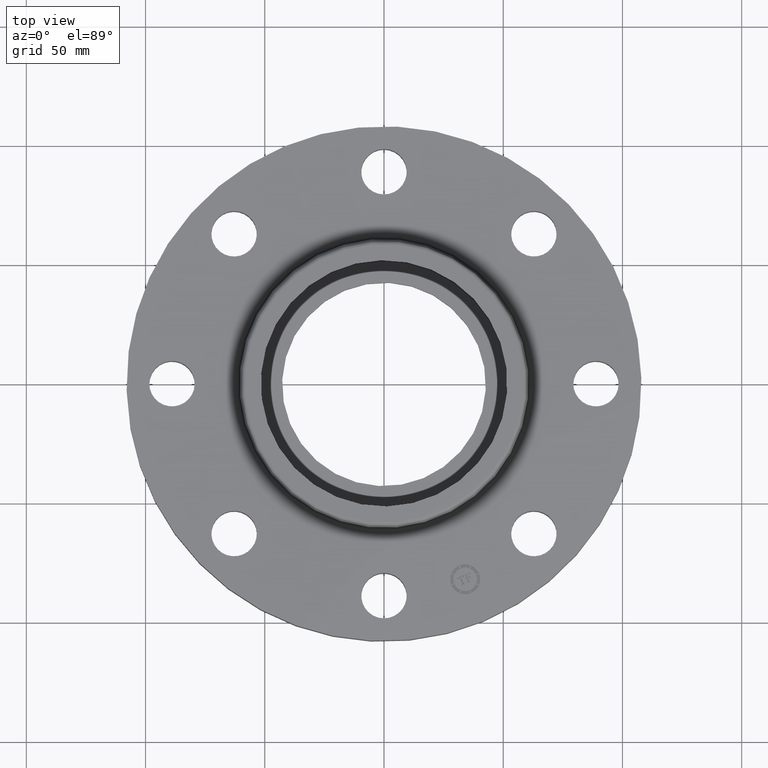
[diagram: clean part render]
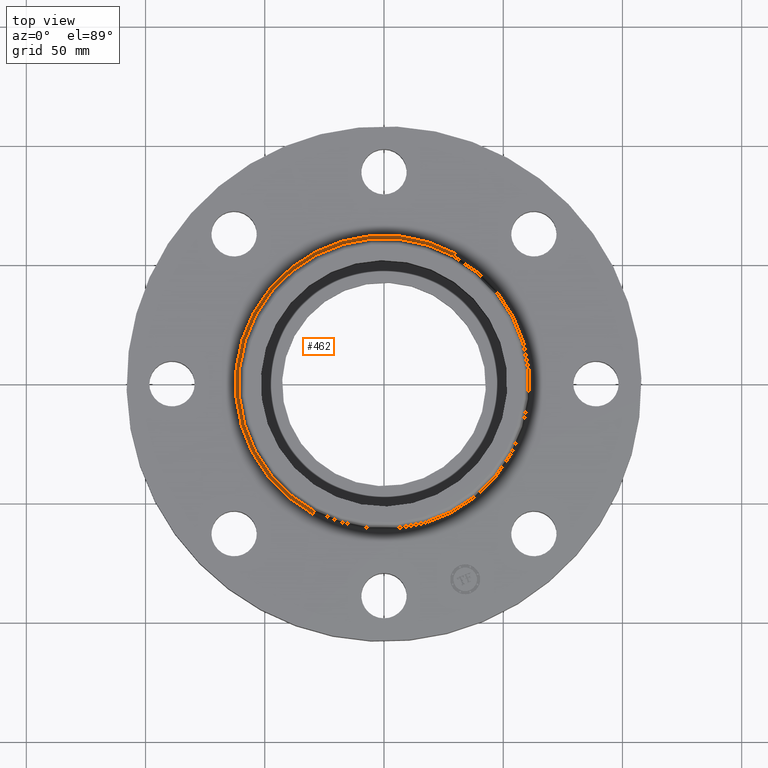
[diagram: same view with one face highlighted and labeled with its STEP entity id]
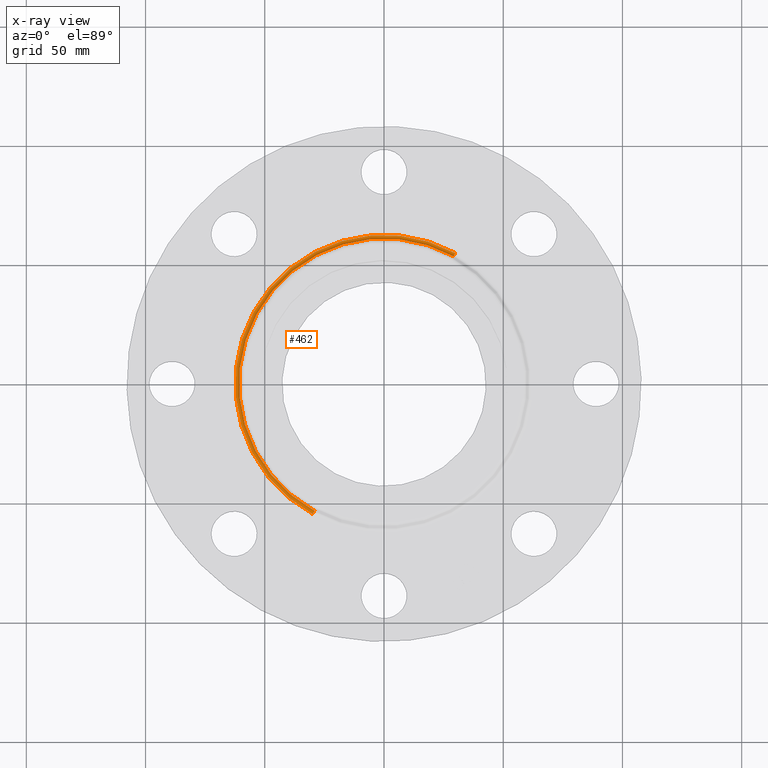
[diagram: x-ray of the same camera — body ghosted, the highlighted face saturated]
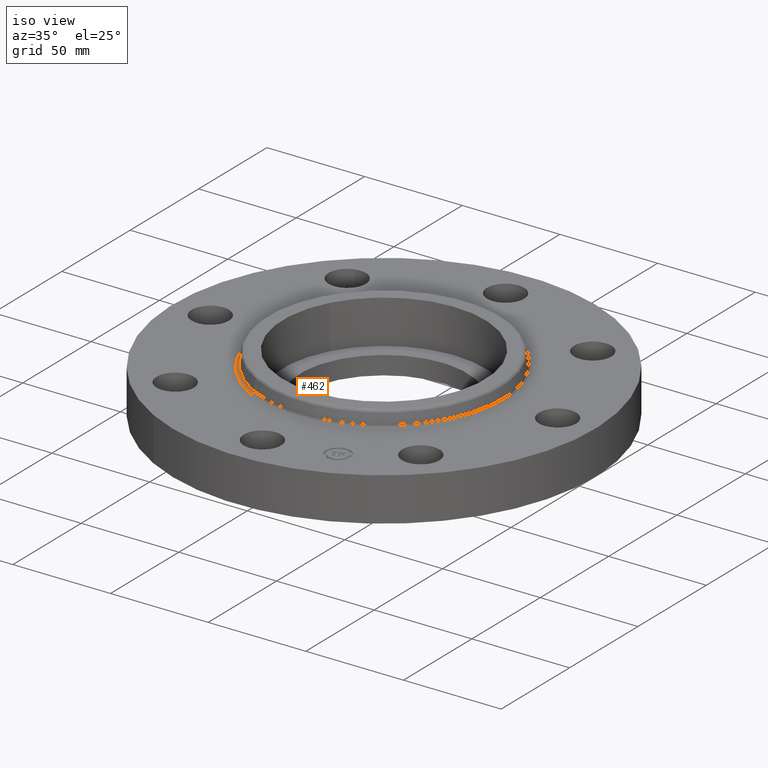
[diagram: same view with one face highlighted and labeled with its STEP entity id]
A machine part, top view. The second image highlights one B-rep face of the part: STEP entity #462.
The next image is the same camera in x-ray: the body ghosted, the highlighted face saturated — about 0% of this face is hidden behind the body in this view.
A second angle (iso view) of the same face is appended — the face is thin or edge-on in the first view.
In plain terms, the highlighted toroidal blend (fillet) surface has major radius 62.3658 mm and minor (blend) radius 1.524 mm.
Its self-contained STEP definition (entity closure, byte-faithful):
#409=AXIS2_PLACEMENT_3D('Torus Axis2P3D',#406,#407,#408) ;
#422=AXIS2_PLACEMENT_3D('Circle Axis2P3D',#420,#421,$) ;
#436=AXIS2_PLACEMENT_3D('Circle Axis2P3D',#434,#435,$) ;
#448=AXIS2_PLACEMENT_3D('Circle Axis2P3D',#446,#447,$) ;
#453=AXIS2_PLACEMENT_3D('Circle Axis2P3D',#451,#452,$) ;
#406=CARTESIAN_POINT('Axis2P3D Location',(0.,0.,0.940000000004)) ;
#415=CARTESIAN_POINT('Vertex',(1.1771555679,2.1547688136,0.880000000004)) ;
#417=CARTESIAN_POINT('Vertex',(-1.1771555679,-2.1547688136,0.880000000004)) ;
#420=CARTESIAN_POINT('Axis2P3D Location',(1.17715556791,2.1547688136,0.940000000004)) ;
#424=CARTESIAN_POINT('Vertex',(1.14882704866,2.10291380694,0.929581109344)) ;
#431=CARTESIAN_POINT('Vertex',(-1.14882704866,-2.10291380694,0.929581109344)) ;
#434=CARTESIAN_POINT('Axis2P3D Location',(-1.1771555679,-2.1547688136,0.940000000004)) ;
#446=CARTESIAN_POINT('Axis2P3D Location',(0.,0.,0.880000000004)) ;
#451=CARTESIAN_POINT('Axis2P3D Location',(0.,0.,0.929581109344)) ;
#407=DIRECTION('Axis2P3D Direction',(0.,0.,-0.0393700787402)) ;
#408=DIRECTION('Axis2P3D XDirection',(-0.0188750212049,-0.0345504945626,0.)) ;
#421=DIRECTION('Axis2P3D Direction',(-0.0345504945626,0.0188750212049,0.)) ;
#435=DIRECTION('Axis2P3D Direction',(0.0345504945626,-0.0188750212049,0.)) ;
#447=DIRECTION('Axis2P3D Direction',(0.,0.,-0.0393700787402)) ;
#452=DIRECTION('Axis2P3D Direction',(0.,0.,-0.0393700787402)) ;
#457=ORIENTED_EDGE('',*,*,#450,.F.) ;
#458=ORIENTED_EDGE('',*,*,#438,.T.) ;
#459=ORIENTED_EDGE('',*,*,#455,.T.) ;
#460=ORIENTED_EDGE('',*,*,#426,.F.) ;
#462=ADVANCED_FACE('PartBody',(#461),#410,.F.) ;
#423=CIRCLE('generated circle',#422,0.0600000000002) ;
#437=CIRCLE('generated circle',#436,0.0600000000002) ;
#449=CIRCLE('generated circle',#448,2.45534597788) ;
#454=CIRCLE('generated circle',#453,2.3962575127) ;
#410=TOROIDAL_SURFACE('homeo Torus',#409,2.45534597788,0.0600000000002) ;
#426=EDGE_CURVE('',#416,#425,#423,.T.) ;
#438=EDGE_CURVE('',#418,#432,#437,.T.) ;
#450=EDGE_CURVE('',#418,#416,#449,.T.) ;
#455=EDGE_CURVE('',#432,#425,#454,.T.) ;
#456=EDGE_LOOP('',(#457,#458,#459,#460)) ;
#461=FACE_OUTER_BOUND('',#456,.T.) ;
#416=VERTEX_POINT('',#415) ;
#418=VERTEX_POINT('',#417) ;
#425=VERTEX_POINT('',#424) ;
#432=VERTEX_POINT('',#431) ;